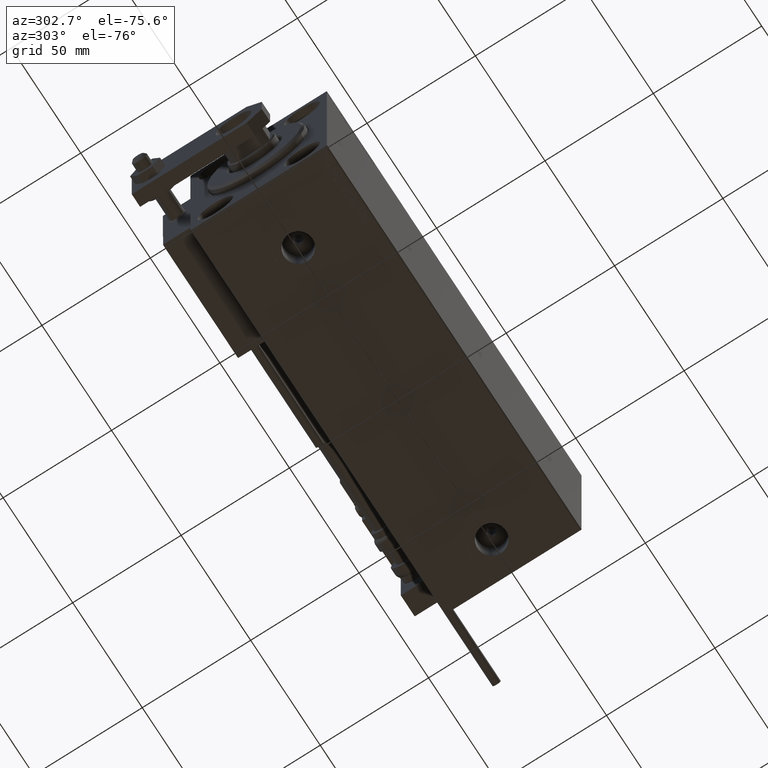
[diagram: clean part render]
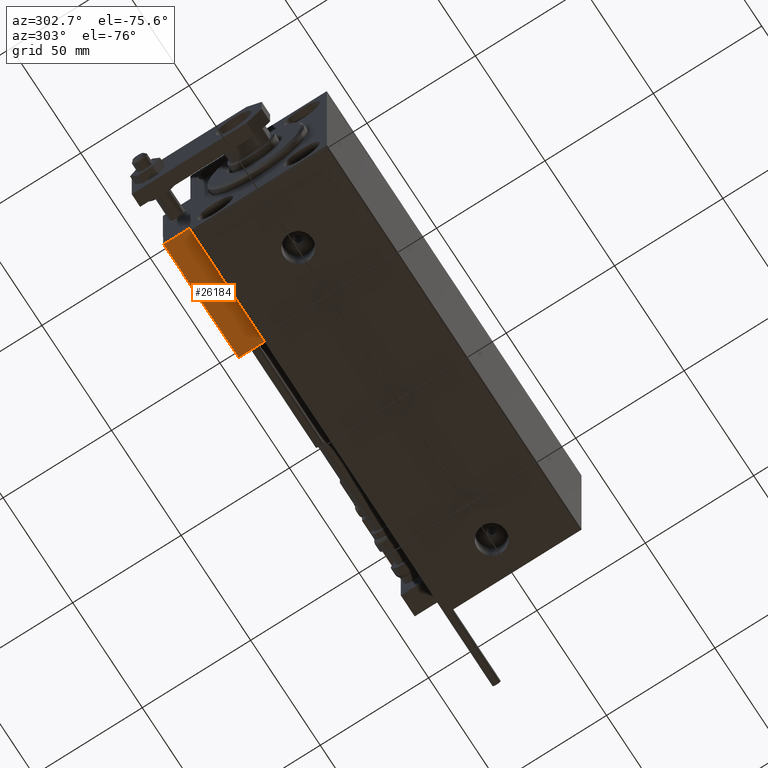
[diagram: same view with one face highlighted and labeled with its STEP entity id]
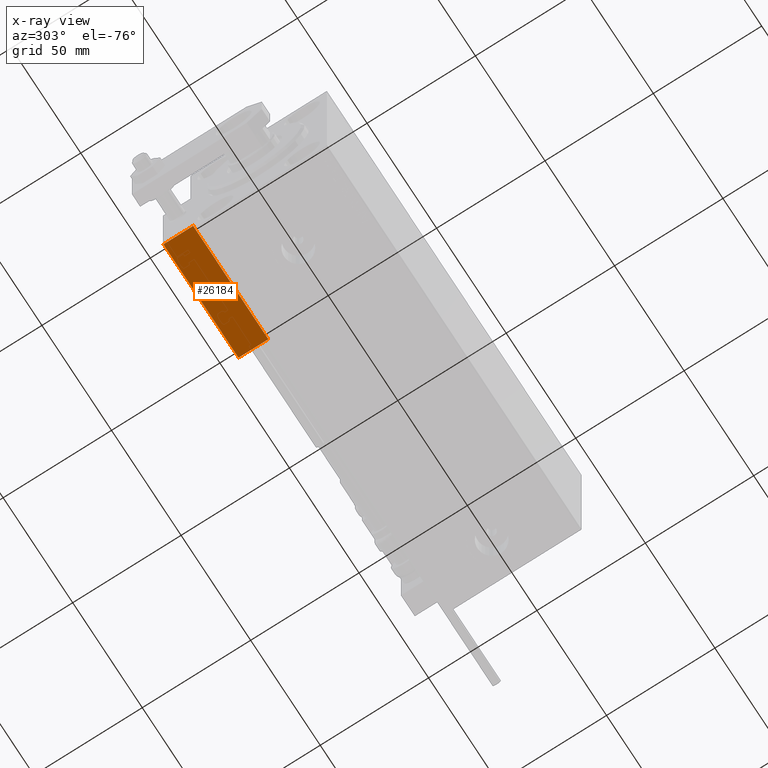
[diagram: x-ray of the same camera — body ghosted, the highlighted face saturated]
A machine part, auxiliary view. The second image highlights one B-rep face of the part: STEP entity #26184.
The next image is the same camera in x-ray: the body ghosted, the highlighted face saturated — about 0% of this face is hidden behind the body in this view.
In plain terms, the highlighted planar face has unit normal (0, 0, 1).
Its self-contained STEP definition (entity closure, byte-faithful):
#693 = ORIENTED_EDGE ( 'NONE', *, *, #50817, .T. ) ;
#1736 = DIRECTION ( 'NONE',  ( -0.000000000000000000, -0.000000000000000000, -1.000000000000000000 ) ) ;
#2050 = EDGE_CURVE ( 'NONE', #14524, #4919, #31625, .T. ) ;
#2326 = EDGE_CURVE ( 'NONE', #51510, #8944, #8276, .T. ) ;
#4919 = VERTEX_POINT ( 'NONE', #12895 ) ;
#5103 = DIRECTION ( 'NONE',  ( -0.000000000000000000, -0.000000000000000000, -1.000000000000000000 ) ) ;
#5481 = CARTESIAN_POINT ( 'NONE',  ( 27.00000000000006395, 20.00000000000001776, 14.00000000000000000 ) ) ;
#5737 = PLANE ( 'NONE',  #37515 ) ;
#8276 = LINE ( 'NONE', #24184, #35227 ) ;
#8944 = VERTEX_POINT ( 'NONE', #16861 ) ;
#9268 = CARTESIAN_POINT ( 'NONE',  ( -26.99999999999993605, 20.00000000000002132, 14.00000000000000000 ) ) ;
#12895 = CARTESIAN_POINT ( 'NONE',  ( 27.00000000000006395, 20.00000000000001776, 13.70000000000000107 ) ) ;
#14524 = VERTEX_POINT ( 'NONE', #50786 ) ;
#16861 = CARTESIAN_POINT ( 'NONE',  ( -26.99999999999993605, 20.00000000000002132, 0.000000000000000000 ) ) ;
#21098 = VECTOR ( 'NONE', #47497, 1000.000000000000000 ) ;
#22504 = CARTESIAN_POINT ( 'NONE',  ( 27.00000000000006395, 20.00000000000001776, 13.70000000000000107 ) ) ;
#24184 = CARTESIAN_POINT ( 'NONE',  ( 27.00000000000006395, 20.00000000000001776, 0.000000000000000000 ) ) ;
#26184 = ADVANCED_FACE ( 'NONE', ( #45077 ), #5737, .F. ) ;
#27784 = EDGE_CURVE ( 'NONE', #14524, #8944, #40801, .T. ) ;
#27847 = DIRECTION ( 'NONE',  ( -1.000000000000000000, 6.424901762877062263E-17, 0.000000000000000000 ) ) ;
#28005 = VECTOR ( 'NONE', #1736, 1000.000000000000000 ) ;
#30054 = ORIENTED_EDGE ( 'NONE', *, *, #2326, .T. ) ;
#30657 = LINE ( 'NONE', #46533, #28005 ) ;
#31625 = LINE ( 'NONE', #22504, #21098 ) ;
#32520 = CARTESIAN_POINT ( 'NONE',  ( 27.00000000000006395, 20.00000000000001776, 0.000000000000000000 ) ) ;
#35227 = VECTOR ( 'NONE', #27847, 1000.000000000000000 ) ;
#37515 = AXIS2_PLACEMENT_3D ( 'NONE', #5481, #38026, #42201 ) ;
#37553 = EDGE_LOOP ( 'NONE', ( #44772, #42841, #693, #30054 ) ) ;
#38026 = DIRECTION ( 'NONE',  ( -6.424901762877063495E-17, -1.000000000000000000, 0.000000000000000000 ) ) ;
#40801 = LINE ( 'NONE', #9268, #40910 ) ;
#40910 = VECTOR ( 'NONE', #5103, 1000.000000000000000 ) ;
#42201 = DIRECTION ( 'NONE',  ( 1.000000000000000000, -6.424901762877063495E-17, 0.000000000000000000 ) ) ;
#42841 = ORIENTED_EDGE ( 'NONE', *, *, #2050, .T. ) ;
#44772 = ORIENTED_EDGE ( 'NONE', *, *, #27784, .F. ) ;
#45077 = FACE_OUTER_BOUND ( 'NONE', #37553, .T. ) ;
#46533 = CARTESIAN_POINT ( 'NONE',  ( 27.00000000000006395, 20.00000000000001776, 14.00000000000000000 ) ) ;
#47497 = DIRECTION ( 'NONE',  ( 1.000000000000000000, -6.424901762877063495E-17, -0.000000000000000000 ) ) ;
#50786 = CARTESIAN_POINT ( 'NONE',  ( -26.99999999999993605, 20.00000000000002132, 13.70000000000000107 ) ) ;
#50817 = EDGE_CURVE ( 'NONE', #4919, #51510, #30657, .T. ) ;
#51510 = VERTEX_POINT ( 'NONE', #32520 ) ;